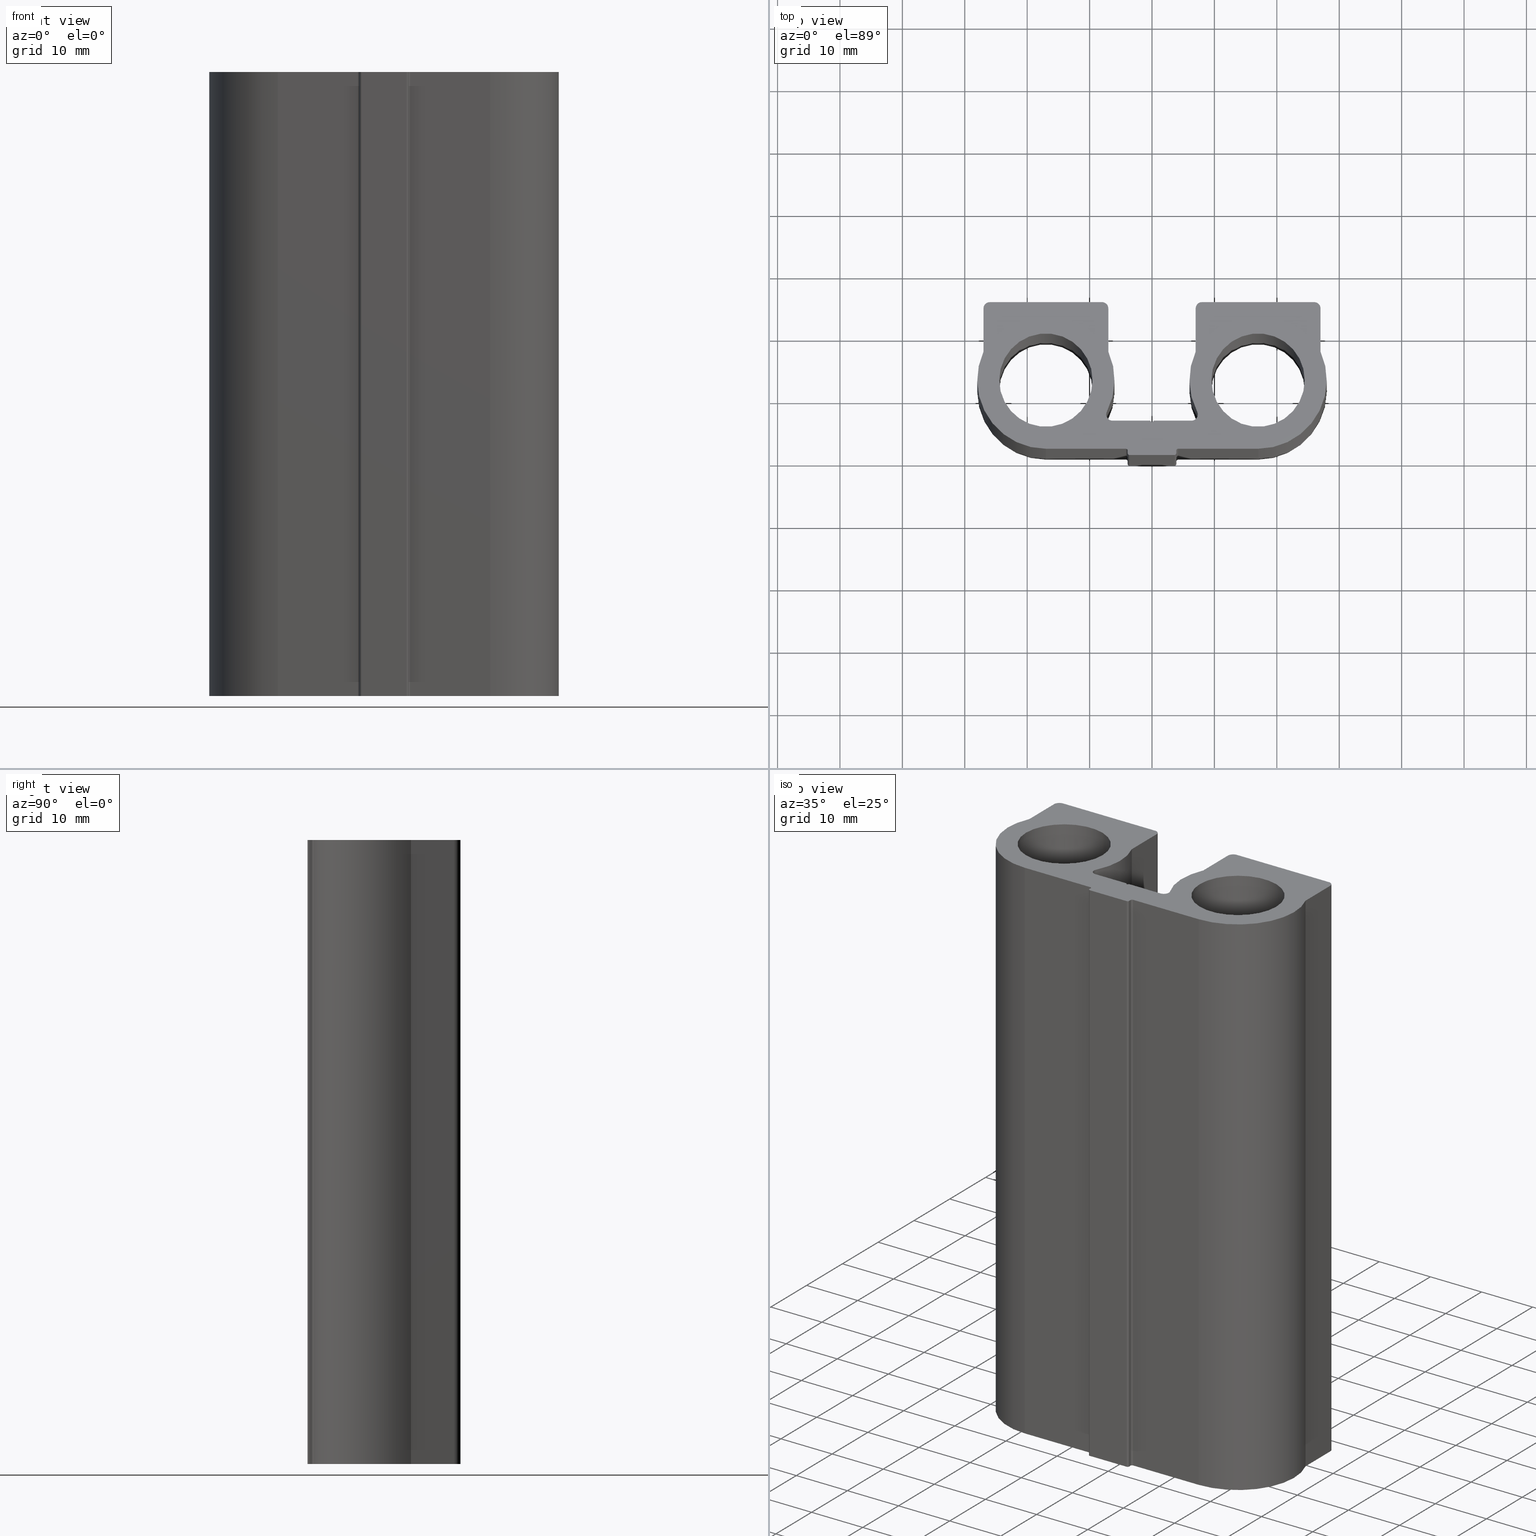
[diagram: canonical four-view strip — front | top / right | iso, engineering-drawing reading convention]
A machine part, canonical four-view strip (front | top / right | iso — engineering-drawing reading convention). The complete STEP part file that produces these views, byte-faithful:
ISO-10303-21;
HEADER;
/* Generated by software containing ST-Developer
 * from STEP Tools, Inc. (www.steptools.com) 
 */

FILE_DESCRIPTION(
/* description */ ('PROFILO X PROTEZIONI '),
/* implementation_level */ '2;1');

FILE_NAME(
/* name */ 
'Q:\\Catalogo\\1_Profili Dierre\\Per Download Web\\Complementari\\BPRD
D0000429.stp',
/* time_stamp */ '2017-07-14T12:29:38+02:00',
/* author */ ('fzagni'),
/* organization */ (''),
/* preprocessor_version */ 'ST-DEVELOPER v16.1',
/* originating_system */ 'Autodesk Inventor 2016',
/* authorisation */ '');

FILE_SCHEMA (('AUTOMOTIVE_DESIGN { 1 0 10303 214 3 1 1 }'));
ENDSEC;

DATA;
#10=MECHANICAL_DESIGN_GEOMETRIC_PRESENTATION_REPRESENTATION('',(#13),#1092);
#11=SHAPE_REPRESENTATION_RELATIONSHIP('SRR','None',#1101,#12);
#12=ADVANCED_BREP_SHAPE_REPRESENTATION('',(#14),#1091);
#13=STYLED_ITEM('',(#1110),#14);
#14=MANIFOLD_SOLID_BREP('Solido1',#644);
#15=LINE('',#916,#74);
#16=LINE('',#918,#75);
#17=LINE('',#920,#76);
#18=LINE('',#921,#77);
#19=LINE('',#924,#78);
#20=LINE('',#926,#79);
#21=LINE('',#927,#80);
#22=LINE('',#930,#81);
#23=LINE('',#932,#82);
#24=LINE('',#933,#83);
#25=LINE('',#939,#84);
#26=LINE('',#945,#85);
#27=LINE('',#948,#86);
#28=LINE('',#950,#87);
#29=LINE('',#951,#88);
#30=LINE('',#957,#89);
#31=LINE('',#960,#90);
#32=LINE('',#962,#91);
#33=LINE('',#963,#92);
#34=LINE('',#969,#93);
#35=LINE('',#972,#94);
#36=LINE('',#974,#95);
#37=LINE('',#975,#96);
#38=LINE('',#981,#97);
#39=LINE('',#984,#98);
#40=LINE('',#986,#99);
#41=LINE('',#987,#100);
#42=LINE('',#993,#101);
#43=LINE('',#996,#102);
#44=LINE('',#998,#103);
#45=LINE('',#999,#104);
#46=LINE('',#1005,#105);
#47=LINE('',#1008,#106);
#48=LINE('',#1010,#107);
#49=LINE('',#1011,#108);
#50=LINE('',#1017,#109);
#51=LINE('',#1020,#110);
#52=LINE('',#1022,#111);
#53=LINE('',#1023,#112);
#54=LINE('',#1029,#113);
#55=LINE('',#1032,#114);
#56=LINE('',#1034,#115);
#57=LINE('',#1035,#116);
#58=LINE('',#1041,#117);
#59=LINE('',#1044,#118);
#60=LINE('',#1046,#119);
#61=LINE('',#1047,#120);
#62=LINE('',#1053,#121);
#63=LINE('',#1056,#122);
#64=LINE('',#1058,#123);
#65=LINE('',#1059,#124);
#66=LINE('',#1065,#125);
#67=LINE('',#1068,#126);
#68=LINE('',#1070,#127);
#69=LINE('',#1071,#128);
#70=LINE('',#1077,#129);
#71=LINE('',#1083,#130);
#72=LINE('',#1085,#131);
#73=LINE('',#1086,#132);
#74=VECTOR('',#727,0.424262371469913);
#75=VECTOR('',#728,100.);
#76=VECTOR('',#729,0.424262371469913);
#77=VECTOR('',#730,100.);
#78=VECTOR('',#733,0.424264839462219);
#79=VECTOR('',#734,0.424264839462219);
#80=VECTOR('',#735,100.);
#81=VECTOR('',#738,6.03461659411528);
#82=VECTOR('',#739,6.03461659411528);
#83=VECTOR('',#740,100.);
#84=VECTOR('',#747,100.);
#85=VECTOR('',#754,100.);
#86=VECTOR('',#757,6.91739797517743);
#87=VECTOR('',#758,6.91739797517743);
#88=VECTOR('',#759,100.);
#89=VECTOR('',#766,100.);
#90=VECTOR('',#769,17.999964);
#91=VECTOR('',#770,17.999964);
#92=VECTOR('',#771,100.);
#93=VECTOR('',#778,100.);
#94=VECTOR('',#781,6.9173979751806);
#95=VECTOR('',#782,6.9173979751806);
#96=VECTOR('',#783,100.);
#97=VECTOR('',#790,100.);
#98=VECTOR('',#793,12.7999774499939);
#99=VECTOR('',#794,12.7999774499939);
#100=VECTOR('',#795,100.);
#101=VECTOR('',#802,100.);
#102=VECTOR('',#805,0.40000453877397);
#103=VECTOR('',#806,0.40000453877397);
#104=VECTOR('',#807,100.);
#105=VECTOR('',#814,100.);
#106=VECTOR('',#817,7.19998254000612);
#107=VECTOR('',#818,7.19998254000612);
#108=VECTOR('',#819,100.);
#109=VECTOR('',#826,100.);
#110=VECTOR('',#829,0.400000728781609);
#111=VECTOR('',#830,0.400000728781609);
#112=VECTOR('',#831,100.);
#113=VECTOR('',#838,100.);
#114=VECTOR('',#841,12.7999736400015);
#115=VECTOR('',#842,12.7999736400015);
#116=VECTOR('',#843,100.);
#117=VECTOR('',#850,100.);
#118=VECTOR('',#853,6.9173979751774);
#119=VECTOR('',#854,6.9173979751774);
#120=VECTOR('',#855,100.);
#121=VECTOR('',#862,100.);
#122=VECTOR('',#865,17.9999620859527);
#123=VECTOR('',#866,17.9999620859527);
#124=VECTOR('',#867,100.);
#125=VECTOR('',#874,100.);
#126=VECTOR('',#877,6.91740179502026);
#127=VECTOR('',#878,6.91740179502026);
#128=VECTOR('',#879,100.);
#129=VECTOR('',#886,100.);
#130=VECTOR('',#893,100.);
#131=VECTOR('',#896,6.0346253807251);
#132=VECTOR('',#897,6.0346253807251);
#133=PLANE('',#652);
#134=PLANE('',#653);
#135=PLANE('',#654);
#136=PLANE('',#661);
#137=PLANE('',#665);
#138=PLANE('',#669);
#139=PLANE('',#673);
#140=PLANE('',#677);
#141=PLANE('',#681);
#142=PLANE('',#685);
#143=PLANE('',#689);
#144=PLANE('',#693);
#145=PLANE('',#697);
#146=PLANE('',#701);
#147=PLANE('',#708);
#148=PLANE('',#709);
#149=PLANE('',#710);
#150=FACE_BOUND('',#190,.T.);
#151=FACE_BOUND('',#192,.T.);
#152=FACE_BOUND('',#223,.T.);
#153=FACE_BOUND('',#224,.T.);
#154=FACE_BOUND('',#226,.T.);
#155=FACE_BOUND('',#227,.T.);
#156=FACE_OUTER_BOUND('',#189,.T.);
#157=FACE_OUTER_BOUND('',#191,.T.);
#158=FACE_OUTER_BOUND('',#193,.T.);
#159=FACE_OUTER_BOUND('',#194,.T.);
#160=FACE_OUTER_BOUND('',#195,.T.);
#161=FACE_OUTER_BOUND('',#196,.T.);
#162=FACE_OUTER_BOUND('',#197,.T.);
#163=FACE_OUTER_BOUND('',#198,.T.);
#164=FACE_OUTER_BOUND('',#199,.T.);
#165=FACE_OUTER_BOUND('',#200,.T.);
#166=FACE_OUTER_BOUND('',#201,.T.);
#167=FACE_OUTER_BOUND('',#202,.T.);
#168=FACE_OUTER_BOUND('',#203,.T.);
#169=FACE_OUTER_BOUND('',#204,.T.);
#170=FACE_OUTER_BOUND('',#205,.T.);
#171=FACE_OUTER_BOUND('',#206,.T.);
#172=FACE_OUTER_BOUND('',#207,.T.);
#173=FACE_OUTER_BOUND('',#208,.T.);
#174=FACE_OUTER_BOUND('',#209,.T.);
#175=FACE_OUTER_BOUND('',#210,.T.);
#176=FACE_OUTER_BOUND('',#211,.T.);
#177=FACE_OUTER_BOUND('',#212,.T.);
#178=FACE_OUTER_BOUND('',#213,.T.);
#179=FACE_OUTER_BOUND('',#214,.T.);
#180=FACE_OUTER_BOUND('',#215,.T.);
#181=FACE_OUTER_BOUND('',#216,.T.);
#182=FACE_OUTER_BOUND('',#217,.T.);
#183=FACE_OUTER_BOUND('',#218,.T.);
#184=FACE_OUTER_BOUND('',#219,.T.);
#185=FACE_OUTER_BOUND('',#220,.T.);
#186=FACE_OUTER_BOUND('',#221,.T.);
#187=FACE_OUTER_BOUND('',#222,.T.);
#188=FACE_OUTER_BOUND('',#225,.T.);
#189=EDGE_LOOP('',(#413));
#190=EDGE_LOOP('',(#414));
#191=EDGE_LOOP('',(#415));
#192=EDGE_LOOP('',(#416));
#193=EDGE_LOOP('',(#417,#418,#419,#420));
#194=EDGE_LOOP('',(#421,#422,#423,#424));
#195=EDGE_LOOP('',(#425,#426,#427,#428));
#196=EDGE_LOOP('',(#429,#430,#431,#432));
#197=EDGE_LOOP('',(#433,#434,#435,#436));
#198=EDGE_LOOP('',(#437,#438,#439,#440));
#199=EDGE_LOOP('',(#441,#442,#443,#444));
#200=EDGE_LOOP('',(#445,#446,#447,#448));
#201=EDGE_LOOP('',(#449,#450,#451,#452));
#202=EDGE_LOOP('',(#453,#454,#455,#456));
#203=EDGE_LOOP('',(#457,#458,#459,#460));
#204=EDGE_LOOP('',(#461,#462,#463,#464));
#205=EDGE_LOOP('',(#465,#466,#467,#468));
#206=EDGE_LOOP('',(#469,#470,#471,#472));
#207=EDGE_LOOP('',(#473,#474,#475,#476));
#208=EDGE_LOOP('',(#477,#478,#479,#480));
#209=EDGE_LOOP('',(#481,#482,#483,#484));
#210=EDGE_LOOP('',(#485,#486,#487,#488));
#211=EDGE_LOOP('',(#489,#490,#491,#492));
#212=EDGE_LOOP('',(#493,#494,#495,#496));
#213=EDGE_LOOP('',(#497,#498,#499,#500));
#214=EDGE_LOOP('',(#501,#502,#503,#504));
#215=EDGE_LOOP('',(#505,#506,#507,#508));
#216=EDGE_LOOP('',(#509,#510,#511,#512));
#217=EDGE_LOOP('',(#513,#514,#515,#516));
#218=EDGE_LOOP('',(#517,#518,#519,#520));
#219=EDGE_LOOP('',(#521,#522,#523,#524));
#220=EDGE_LOOP('',(#525,#526,#527,#528));
#221=EDGE_LOOP('',(#529,#530,#531,#532));
#222=EDGE_LOOP('',(#533,#534,#535,#536,#537,#538,#539,#540,#541,#542,#543,
#544,#545,#546,#547,#548,#549,#550,#551,#552,#553,#554,#555,#556,#557,#558,
#559,#560,#561));
#223=EDGE_LOOP('',(#562));
#224=EDGE_LOOP('',(#563));
#225=EDGE_LOOP('',(#564,#565,#566,#567,#568,#569,#570,#571,#572,#573,#574,
#575,#576,#577,#578,#579,#580,#581,#582,#583,#584,#585,#586,#587,#588,#589,
#590,#591,#592));
#226=EDGE_LOOP('',(#593));
#227=EDGE_LOOP('',(#594));
#228=CIRCLE('',#647,7.47498733999543);
#229=CIRCLE('',#648,7.47498733999543);
#230=CIRCLE('',#650,7.47498733999542);
#231=CIRCLE('',#651,7.47498733999542);
#232=CIRCLE('',#656,0.999996077032479);
#233=CIRCLE('',#657,0.999996077032479);
#234=CIRCLE('',#659,10.9999803253407);
#235=CIRCLE('',#660,10.9999803253407);
#236=CIRCLE('',#663,0.99999609210157);
#237=CIRCLE('',#664,0.99999609210157);
#238=CIRCLE('',#667,0.999998004051739);
#239=CIRCLE('',#668,0.999998004051739);
#240=CIRCLE('',#671,10.9999774417901);
#241=CIRCLE('',#672,10.9999774417901);
#242=CIRCLE('',#675,0.300000541219139);
#243=CIRCLE('',#676,0.300000541219139);
#244=CIRCLE('',#679,0.29999864124116);
#245=CIRCLE('',#680,0.29999864124116);
#246=CIRCLE('',#683,0.300000546219096);
#247=CIRCLE('',#684,0.300000546219096);
#248=CIRCLE('',#687,0.300002451209252);
#249=CIRCLE('',#688,0.300002451209252);
#250=CIRCLE('',#691,10.9999748453875);
#251=CIRCLE('',#692,10.9999748453875);
#252=CIRCLE('',#695,0.999998004051122);
#253=CIRCLE('',#696,0.999998004051122);
#254=CIRCLE('',#699,0.999994180164492);
#255=CIRCLE('',#700,0.999994180164492);
#256=CIRCLE('',#703,10.9999754773308);
#257=CIRCLE('',#704,10.9999754773308);
#258=CIRCLE('',#706,0.999997775475729);
#259=CIRCLE('',#707,0.999997775475729);
#260=VERTEX_POINT('',#904);
#261=VERTEX_POINT('',#906);
#262=VERTEX_POINT('',#909);
#263=VERTEX_POINT('',#911);
#264=VERTEX_POINT('',#914);
#265=VERTEX_POINT('',#915);
#266=VERTEX_POINT('',#917);
#267=VERTEX_POINT('',#919);
#268=VERTEX_POINT('',#923);
#269=VERTEX_POINT('',#925);
#270=VERTEX_POINT('',#929);
#271=VERTEX_POINT('',#931);
#272=VERTEX_POINT('',#935);
#273=VERTEX_POINT('',#937);
#274=VERTEX_POINT('',#941);
#275=VERTEX_POINT('',#943);
#276=VERTEX_POINT('',#947);
#277=VERTEX_POINT('',#949);
#278=VERTEX_POINT('',#953);
#279=VERTEX_POINT('',#955);
#280=VERTEX_POINT('',#959);
#281=VERTEX_POINT('',#961);
#282=VERTEX_POINT('',#965);
#283=VERTEX_POINT('',#967);
#284=VERTEX_POINT('',#971);
#285=VERTEX_POINT('',#973);
#286=VERTEX_POINT('',#977);
#287=VERTEX_POINT('',#979);
#288=VERTEX_POINT('',#983);
#289=VERTEX_POINT('',#985);
#290=VERTEX_POINT('',#989);
#291=VERTEX_POINT('',#991);
#292=VERTEX_POINT('',#995);
#293=VERTEX_POINT('',#997);
#294=VERTEX_POINT('',#1001);
#295=VERTEX_POINT('',#1003);
#296=VERTEX_POINT('',#1007);
#297=VERTEX_POINT('',#1009);
#298=VERTEX_POINT('',#1013);
#299=VERTEX_POINT('',#1015);
#300=VERTEX_POINT('',#1019);
#301=VERTEX_POINT('',#1021);
#302=VERTEX_POINT('',#1025);
#303=VERTEX_POINT('',#1027);
#304=VERTEX_POINT('',#1031);
#305=VERTEX_POINT('',#1033);
#306=VERTEX_POINT('',#1037);
#307=VERTEX_POINT('',#1039);
#308=VERTEX_POINT('',#1043);
#309=VERTEX_POINT('',#1045);
#310=VERTEX_POINT('',#1049);
#311=VERTEX_POINT('',#1051);
#312=VERTEX_POINT('',#1055);
#313=VERTEX_POINT('',#1057);
#314=VERTEX_POINT('',#1061);
#315=VERTEX_POINT('',#1063);
#316=VERTEX_POINT('',#1067);
#317=VERTEX_POINT('',#1069);
#318=VERTEX_POINT('',#1073);
#319=VERTEX_POINT('',#1075);
#320=VERTEX_POINT('',#1079);
#321=VERTEX_POINT('',#1081);
#322=EDGE_CURVE('',#260,#260,#228,.T.);
#323=EDGE_CURVE('',#261,#261,#229,.T.);
#324=EDGE_CURVE('',#262,#262,#230,.T.);
#325=EDGE_CURVE('',#263,#263,#231,.T.);
#326=EDGE_CURVE('',#264,#265,#15,.T.);
#327=EDGE_CURVE('',#264,#266,#16,.T.);
#328=EDGE_CURVE('',#267,#266,#17,.T.);
#329=EDGE_CURVE('',#265,#267,#18,.T.);
#330=EDGE_CURVE('',#265,#268,#19,.T.);
#331=EDGE_CURVE('',#269,#267,#20,.T.);
#332=EDGE_CURVE('',#268,#269,#21,.T.);
#333=EDGE_CURVE('',#268,#270,#22,.T.);
#334=EDGE_CURVE('',#271,#269,#23,.T.);
#335=EDGE_CURVE('',#270,#271,#24,.T.);
#336=EDGE_CURVE('',#270,#272,#232,.T.);
#337=EDGE_CURVE('',#273,#271,#233,.T.);
#338=EDGE_CURVE('',#272,#273,#25,.T.);
#339=EDGE_CURVE('',#272,#274,#234,.T.);
#340=EDGE_CURVE('',#275,#273,#235,.T.);
#341=EDGE_CURVE('',#274,#275,#26,.T.);
#342=EDGE_CURVE('',#274,#276,#27,.T.);
#343=EDGE_CURVE('',#277,#275,#28,.T.);
#344=EDGE_CURVE('',#276,#277,#29,.T.);
#345=EDGE_CURVE('',#276,#278,#236,.T.);
#346=EDGE_CURVE('',#279,#277,#237,.T.);
#347=EDGE_CURVE('',#278,#279,#30,.T.);
#348=EDGE_CURVE('',#278,#280,#31,.T.);
#349=EDGE_CURVE('',#281,#279,#32,.T.);
#350=EDGE_CURVE('',#280,#281,#33,.T.);
#351=EDGE_CURVE('',#280,#282,#238,.T.);
#352=EDGE_CURVE('',#283,#281,#239,.T.);
#353=EDGE_CURVE('',#282,#283,#34,.T.);
#354=EDGE_CURVE('',#282,#284,#35,.T.);
#355=EDGE_CURVE('',#285,#283,#36,.T.);
#356=EDGE_CURVE('',#284,#285,#37,.T.);
#357=EDGE_CURVE('',#284,#286,#240,.T.);
#358=EDGE_CURVE('',#287,#285,#241,.T.);
#359=EDGE_CURVE('',#286,#287,#38,.T.);
#360=EDGE_CURVE('',#286,#288,#39,.T.);
#361=EDGE_CURVE('',#289,#287,#40,.T.);
#362=EDGE_CURVE('',#288,#289,#41,.T.);
#363=EDGE_CURVE('',#288,#290,#242,.T.);
#364=EDGE_CURVE('',#291,#289,#243,.T.);
#365=EDGE_CURVE('',#290,#291,#42,.T.);
#366=EDGE_CURVE('',#290,#292,#43,.T.);
#367=EDGE_CURVE('',#293,#291,#44,.T.);
#368=EDGE_CURVE('',#292,#293,#45,.T.);
#369=EDGE_CURVE('',#292,#294,#244,.T.);
#370=EDGE_CURVE('',#295,#293,#245,.T.);
#371=EDGE_CURVE('',#294,#295,#46,.T.);
#372=EDGE_CURVE('',#294,#296,#47,.T.);
#373=EDGE_CURVE('',#297,#295,#48,.T.);
#374=EDGE_CURVE('',#296,#297,#49,.T.);
#375=EDGE_CURVE('',#296,#298,#246,.T.);
#376=EDGE_CURVE('',#299,#297,#247,.T.);
#377=EDGE_CURVE('',#298,#299,#50,.T.);
#378=EDGE_CURVE('',#298,#300,#51,.T.);
#379=EDGE_CURVE('',#301,#299,#52,.T.);
#380=EDGE_CURVE('',#300,#301,#53,.T.);
#381=EDGE_CURVE('',#300,#302,#248,.T.);
#382=EDGE_CURVE('',#303,#301,#249,.T.);
#383=EDGE_CURVE('',#302,#303,#54,.T.);
#384=EDGE_CURVE('',#302,#304,#55,.T.);
#385=EDGE_CURVE('',#305,#303,#56,.T.);
#386=EDGE_CURVE('',#304,#305,#57,.T.);
#387=EDGE_CURVE('',#304,#306,#250,.T.);
#388=EDGE_CURVE('',#307,#305,#251,.T.);
#389=EDGE_CURVE('',#306,#307,#58,.T.);
#390=EDGE_CURVE('',#306,#308,#59,.T.);
#391=EDGE_CURVE('',#309,#307,#60,.T.);
#392=EDGE_CURVE('',#308,#309,#61,.T.);
#393=EDGE_CURVE('',#308,#310,#252,.T.);
#394=EDGE_CURVE('',#311,#309,#253,.T.);
#395=EDGE_CURVE('',#310,#311,#62,.T.);
#396=EDGE_CURVE('',#310,#312,#63,.T.);
#397=EDGE_CURVE('',#313,#311,#64,.T.);
#398=EDGE_CURVE('',#312,#313,#65,.T.);
#399=EDGE_CURVE('',#312,#314,#254,.T.);
#400=EDGE_CURVE('',#315,#313,#255,.T.);
#401=EDGE_CURVE('',#314,#315,#66,.T.);
#402=EDGE_CURVE('',#314,#316,#67,.T.);
#403=EDGE_CURVE('',#317,#315,#68,.T.);
#404=EDGE_CURVE('',#316,#317,#69,.T.);
#405=EDGE_CURVE('',#316,#318,#256,.T.);
#406=EDGE_CURVE('',#319,#317,#257,.T.);
#407=EDGE_CURVE('',#318,#319,#70,.T.);
#408=EDGE_CURVE('',#318,#320,#258,.T.);
#409=EDGE_CURVE('',#321,#319,#259,.T.);
#410=EDGE_CURVE('',#320,#321,#71,.T.);
#411=EDGE_CURVE('',#320,#264,#72,.T.);
#412=EDGE_CURVE('',#266,#321,#73,.T.);
#413=ORIENTED_EDGE('',*,*,#322,.F.);
#414=ORIENTED_EDGE('',*,*,#323,.F.);
#415=ORIENTED_EDGE('',*,*,#324,.F.);
#416=ORIENTED_EDGE('',*,*,#325,.F.);
#417=ORIENTED_EDGE('',*,*,#326,.F.);
#418=ORIENTED_EDGE('',*,*,#327,.T.);
#419=ORIENTED_EDGE('',*,*,#328,.F.);
#420=ORIENTED_EDGE('',*,*,#329,.F.);
#421=ORIENTED_EDGE('',*,*,#330,.F.);
#422=ORIENTED_EDGE('',*,*,#329,.T.);
#423=ORIENTED_EDGE('',*,*,#331,.F.);
#424=ORIENTED_EDGE('',*,*,#332,.F.);
#425=ORIENTED_EDGE('',*,*,#333,.F.);
#426=ORIENTED_EDGE('',*,*,#332,.T.);
#427=ORIENTED_EDGE('',*,*,#334,.F.);
#428=ORIENTED_EDGE('',*,*,#335,.F.);
#429=ORIENTED_EDGE('',*,*,#336,.F.);
#430=ORIENTED_EDGE('',*,*,#335,.T.);
#431=ORIENTED_EDGE('',*,*,#337,.F.);
#432=ORIENTED_EDGE('',*,*,#338,.F.);
#433=ORIENTED_EDGE('',*,*,#339,.F.);
#434=ORIENTED_EDGE('',*,*,#338,.T.);
#435=ORIENTED_EDGE('',*,*,#340,.F.);
#436=ORIENTED_EDGE('',*,*,#341,.F.);
#437=ORIENTED_EDGE('',*,*,#342,.F.);
#438=ORIENTED_EDGE('',*,*,#341,.T.);
#439=ORIENTED_EDGE('',*,*,#343,.F.);
#440=ORIENTED_EDGE('',*,*,#344,.F.);
#441=ORIENTED_EDGE('',*,*,#345,.F.);
#442=ORIENTED_EDGE('',*,*,#344,.T.);
#443=ORIENTED_EDGE('',*,*,#346,.F.);
#444=ORIENTED_EDGE('',*,*,#347,.F.);
#445=ORIENTED_EDGE('',*,*,#348,.F.);
#446=ORIENTED_EDGE('',*,*,#347,.T.);
#447=ORIENTED_EDGE('',*,*,#349,.F.);
#448=ORIENTED_EDGE('',*,*,#350,.F.);
#449=ORIENTED_EDGE('',*,*,#351,.F.);
#450=ORIENTED_EDGE('',*,*,#350,.T.);
#451=ORIENTED_EDGE('',*,*,#352,.F.);
#452=ORIENTED_EDGE('',*,*,#353,.F.);
#453=ORIENTED_EDGE('',*,*,#354,.F.);
#454=ORIENTED_EDGE('',*,*,#353,.T.);
#455=ORIENTED_EDGE('',*,*,#355,.F.);
#456=ORIENTED_EDGE('',*,*,#356,.F.);
#457=ORIENTED_EDGE('',*,*,#357,.F.);
#458=ORIENTED_EDGE('',*,*,#356,.T.);
#459=ORIENTED_EDGE('',*,*,#358,.F.);
#460=ORIENTED_EDGE('',*,*,#359,.F.);
#461=ORIENTED_EDGE('',*,*,#360,.F.);
#462=ORIENTED_EDGE('',*,*,#359,.T.);
#463=ORIENTED_EDGE('',*,*,#361,.F.);
#464=ORIENTED_EDGE('',*,*,#362,.F.);
#465=ORIENTED_EDGE('',*,*,#363,.F.);
#466=ORIENTED_EDGE('',*,*,#362,.T.);
#467=ORIENTED_EDGE('',*,*,#364,.F.);
#468=ORIENTED_EDGE('',*,*,#365,.F.);
#469=ORIENTED_EDGE('',*,*,#366,.F.);
#470=ORIENTED_EDGE('',*,*,#365,.T.);
#471=ORIENTED_EDGE('',*,*,#367,.F.);
#472=ORIENTED_EDGE('',*,*,#368,.F.);
#473=ORIENTED_EDGE('',*,*,#369,.F.);
#474=ORIENTED_EDGE('',*,*,#368,.T.);
#475=ORIENTED_EDGE('',*,*,#370,.F.);
#476=ORIENTED_EDGE('',*,*,#371,.F.);
#477=ORIENTED_EDGE('',*,*,#372,.F.);
#478=ORIENTED_EDGE('',*,*,#371,.T.);
#479=ORIENTED_EDGE('',*,*,#373,.F.);
#480=ORIENTED_EDGE('',*,*,#374,.F.);
#481=ORIENTED_EDGE('',*,*,#375,.F.);
#482=ORIENTED_EDGE('',*,*,#374,.T.);
#483=ORIENTED_EDGE('',*,*,#376,.F.);
#484=ORIENTED_EDGE('',*,*,#377,.F.);
#485=ORIENTED_EDGE('',*,*,#378,.F.);
#486=ORIENTED_EDGE('',*,*,#377,.T.);
#487=ORIENTED_EDGE('',*,*,#379,.F.);
#488=ORIENTED_EDGE('',*,*,#380,.F.);
#489=ORIENTED_EDGE('',*,*,#381,.F.);
#490=ORIENTED_EDGE('',*,*,#380,.T.);
#491=ORIENTED_EDGE('',*,*,#382,.F.);
#492=ORIENTED_EDGE('',*,*,#383,.F.);
#493=ORIENTED_EDGE('',*,*,#384,.F.);
#494=ORIENTED_EDGE('',*,*,#383,.T.);
#495=ORIENTED_EDGE('',*,*,#385,.F.);
#496=ORIENTED_EDGE('',*,*,#386,.F.);
#497=ORIENTED_EDGE('',*,*,#387,.F.);
#498=ORIENTED_EDGE('',*,*,#386,.T.);
#499=ORIENTED_EDGE('',*,*,#388,.F.);
#500=ORIENTED_EDGE('',*,*,#389,.F.);
#501=ORIENTED_EDGE('',*,*,#390,.F.);
#502=ORIENTED_EDGE('',*,*,#389,.T.);
#503=ORIENTED_EDGE('',*,*,#391,.F.);
#504=ORIENTED_EDGE('',*,*,#392,.F.);
#505=ORIENTED_EDGE('',*,*,#393,.F.);
#506=ORIENTED_EDGE('',*,*,#392,.T.);
#507=ORIENTED_EDGE('',*,*,#394,.F.);
#508=ORIENTED_EDGE('',*,*,#395,.F.);
#509=ORIENTED_EDGE('',*,*,#396,.F.);
#510=ORIENTED_EDGE('',*,*,#395,.T.);
#511=ORIENTED_EDGE('',*,*,#397,.F.);
#512=ORIENTED_EDGE('',*,*,#398,.F.);
#513=ORIENTED_EDGE('',*,*,#399,.F.);
#514=ORIENTED_EDGE('',*,*,#398,.T.);
#515=ORIENTED_EDGE('',*,*,#400,.F.);
#516=ORIENTED_EDGE('',*,*,#401,.F.);
#517=ORIENTED_EDGE('',*,*,#402,.F.);
#518=ORIENTED_EDGE('',*,*,#401,.T.);
#519=ORIENTED_EDGE('',*,*,#403,.F.);
#520=ORIENTED_EDGE('',*,*,#404,.F.);
#521=ORIENTED_EDGE('',*,*,#405,.F.);
#522=ORIENTED_EDGE('',*,*,#404,.T.);
#523=ORIENTED_EDGE('',*,*,#406,.F.);
#524=ORIENTED_EDGE('',*,*,#407,.F.);
#525=ORIENTED_EDGE('',*,*,#408,.F.);
#526=ORIENTED_EDGE('',*,*,#407,.T.);
#527=ORIENTED_EDGE('',*,*,#409,.F.);
#528=ORIENTED_EDGE('',*,*,#410,.F.);
#529=ORIENTED_EDGE('',*,*,#411,.F.);
#530=ORIENTED_EDGE('',*,*,#410,.T.);
#531=ORIENTED_EDGE('',*,*,#412,.F.);
#532=ORIENTED_EDGE('',*,*,#327,.F.);
#533=ORIENTED_EDGE('',*,*,#411,.T.);
#534=ORIENTED_EDGE('',*,*,#326,.T.);
#535=ORIENTED_EDGE('',*,*,#330,.T.);
#536=ORIENTED_EDGE('',*,*,#333,.T.);
#537=ORIENTED_EDGE('',*,*,#336,.T.);
#538=ORIENTED_EDGE('',*,*,#339,.T.);
#539=ORIENTED_EDGE('',*,*,#342,.T.);
#540=ORIENTED_EDGE('',*,*,#345,.T.);
#541=ORIENTED_EDGE('',*,*,#348,.T.);
#542=ORIENTED_EDGE('',*,*,#351,.T.);
#543=ORIENTED_EDGE('',*,*,#354,.T.);
#544=ORIENTED_EDGE('',*,*,#357,.T.);
#545=ORIENTED_EDGE('',*,*,#360,.T.);
#546=ORIENTED_EDGE('',*,*,#363,.T.);
#547=ORIENTED_EDGE('',*,*,#366,.T.);
#548=ORIENTED_EDGE('',*,*,#369,.T.);
#549=ORIENTED_EDGE('',*,*,#372,.T.);
#550=ORIENTED_EDGE('',*,*,#375,.T.);
#551=ORIENTED_EDGE('',*,*,#378,.T.);
#552=ORIENTED_EDGE('',*,*,#381,.T.);
#553=ORIENTED_EDGE('',*,*,#384,.T.);
#554=ORIENTED_EDGE('',*,*,#387,.T.);
#555=ORIENTED_EDGE('',*,*,#390,.T.);
#556=ORIENTED_EDGE('',*,*,#393,.T.);
#557=ORIENTED_EDGE('',*,*,#396,.T.);
#558=ORIENTED_EDGE('',*,*,#399,.T.);
#559=ORIENTED_EDGE('',*,*,#402,.T.);
#560=ORIENTED_EDGE('',*,*,#405,.T.);
#561=ORIENTED_EDGE('',*,*,#408,.T.);
#562=ORIENTED_EDGE('',*,*,#323,.T.);
#563=ORIENTED_EDGE('',*,*,#325,.T.);
#564=ORIENTED_EDGE('',*,*,#412,.T.);
#565=ORIENTED_EDGE('',*,*,#409,.T.);
#566=ORIENTED_EDGE('',*,*,#406,.T.);
#567=ORIENTED_EDGE('',*,*,#403,.T.);
#568=ORIENTED_EDGE('',*,*,#400,.T.);
#569=ORIENTED_EDGE('',*,*,#397,.T.);
#570=ORIENTED_EDGE('',*,*,#394,.T.);
#571=ORIENTED_EDGE('',*,*,#391,.T.);
#572=ORIENTED_EDGE('',*,*,#388,.T.);
#573=ORIENTED_EDGE('',*,*,#385,.T.);
#574=ORIENTED_EDGE('',*,*,#382,.T.);
#575=ORIENTED_EDGE('',*,*,#379,.T.);
#576=ORIENTED_EDGE('',*,*,#376,.T.);
#577=ORIENTED_EDGE('',*,*,#373,.T.);
#578=ORIENTED_EDGE('',*,*,#370,.T.);
#579=ORIENTED_EDGE('',*,*,#367,.T.);
#580=ORIENTED_EDGE('',*,*,#364,.T.);
#581=ORIENTED_EDGE('',*,*,#361,.T.);
#582=ORIENTED_EDGE('',*,*,#358,.T.);
#583=ORIENTED_EDGE('',*,*,#355,.T.);
#584=ORIENTED_EDGE('',*,*,#352,.T.);
#585=ORIENTED_EDGE('',*,*,#349,.T.);
#586=ORIENTED_EDGE('',*,*,#346,.T.);
#587=ORIENTED_EDGE('',*,*,#343,.T.);
#588=ORIENTED_EDGE('',*,*,#340,.T.);
#589=ORIENTED_EDGE('',*,*,#337,.T.);
#590=ORIENTED_EDGE('',*,*,#334,.T.);
#591=ORIENTED_EDGE('',*,*,#331,.T.);
#592=ORIENTED_EDGE('',*,*,#328,.T.);
#593=ORIENTED_EDGE('',*,*,#322,.T.);
#594=ORIENTED_EDGE('',*,*,#324,.T.);
#595=CYLINDRICAL_SURFACE('',#646,7.47498733999543);
#596=CYLINDRICAL_SURFACE('',#649,7.47498733999542);
#597=CYLINDRICAL_SURFACE('',#655,0.999996077032479);
#598=CYLINDRICAL_SURFACE('',#658,10.9999803253407);
#599=CYLINDRICAL_SURFACE('',#662,0.99999609210157);
#600=CYLINDRICAL_SURFACE('',#666,0.999998004051739);
#601=CYLINDRICAL_SURFACE('',#670,10.9999774417901);
#602=CYLINDRICAL_SURFACE('',#674,0.300000541219139);
#603=CYLINDRICAL_SURFACE('',#678,0.29999864124116);
#604=CYLINDRICAL_SURFACE('',#682,0.300000546219096);
#605=CYLINDRICAL_SURFACE('',#686,0.300002451209252);
#606=CYLINDRICAL_SURFACE('',#690,10.9999748453875);
#607=CYLINDRICAL_SURFACE('',#694,0.999998004051122);
#608=CYLINDRICAL_SURFACE('',#698,0.999994180164492);
#609=CYLINDRICAL_SURFACE('',#702,10.9999754773308);
#610=CYLINDRICAL_SURFACE('',#705,0.999997775475729);
#611=ADVANCED_FACE('',(#156,#150),#595,.F.);
#612=ADVANCED_FACE('',(#157,#151),#596,.F.);
#613=ADVANCED_FACE('',(#158),#133,.T.);
#614=ADVANCED_FACE('',(#159),#134,.T.);
#615=ADVANCED_FACE('',(#160),#135,.T.);
#616=ADVANCED_FACE('',(#161),#597,.F.);
#617=ADVANCED_FACE('',(#162),#598,.T.);
#618=ADVANCED_FACE('',(#163),#136,.T.);
#619=ADVANCED_FACE('',(#164),#599,.T.);
#620=ADVANCED_FACE('',(#165),#137,.T.);
#621=ADVANCED_FACE('',(#166),#600,.T.);
#622=ADVANCED_FACE('',(#167),#138,.T.);
#623=ADVANCED_FACE('',(#168),#601,.T.);
#624=ADVANCED_FACE('',(#169),#139,.T.);
#625=ADVANCED_FACE('',(#170),#602,.F.);
#626=ADVANCED_FACE('',(#171),#140,.T.);
#627=ADVANCED_FACE('',(#172),#603,.T.);
#628=ADVANCED_FACE('',(#173),#141,.T.);
#629=ADVANCED_FACE('',(#174),#604,.T.);
#630=ADVANCED_FACE('',(#175),#142,.T.);
#631=ADVANCED_FACE('',(#176),#605,.F.);
#632=ADVANCED_FACE('',(#177),#143,.T.);
#633=ADVANCED_FACE('',(#178),#606,.T.);
#634=ADVANCED_FACE('',(#179),#144,.T.);
#635=ADVANCED_FACE('',(#180),#607,.T.);
#636=ADVANCED_FACE('',(#181),#145,.T.);
#637=ADVANCED_FACE('',(#182),#608,.T.);
#638=ADVANCED_FACE('',(#183),#146,.T.);
#639=ADVANCED_FACE('',(#184),#609,.T.);
#640=ADVANCED_FACE('',(#185),#610,.F.);
#641=ADVANCED_FACE('',(#186),#147,.T.);
#642=ADVANCED_FACE('',(#187,#152,#153),#148,.F.);
#643=ADVANCED_FACE('',(#188,#154,#155),#149,.T.);
#644=CLOSED_SHELL('',(#611,#612,#613,#614,#615,#616,#617,#618,#619,#620,
#621,#622,#623,#624,#625,#626,#627,#628,#629,#630,#631,#632,#633,#634,#635,
#636,#637,#638,#639,#640,#641,#642,#643));
#645=AXIS2_PLACEMENT_3D('placement',#902,#711,#712);
#646=AXIS2_PLACEMENT_3D('',#903,#713,#714);
#647=AXIS2_PLACEMENT_3D('',#905,#715,#716);
#648=AXIS2_PLACEMENT_3D('',#907,#717,#718);
#649=AXIS2_PLACEMENT_3D('',#908,#719,#720);
#650=AXIS2_PLACEMENT_3D('',#910,#721,#722);
#651=AXIS2_PLACEMENT_3D('',#912,#723,#724);
#652=AXIS2_PLACEMENT_3D('',#913,#725,#726);
#653=AXIS2_PLACEMENT_3D('',#922,#731,#732);
#654=AXIS2_PLACEMENT_3D('',#928,#736,#737);
#655=AXIS2_PLACEMENT_3D('',#934,#741,#742);
#656=AXIS2_PLACEMENT_3D('',#936,#743,#744);
#657=AXIS2_PLACEMENT_3D('',#938,#745,#746);
#658=AXIS2_PLACEMENT_3D('',#940,#748,#749);
#659=AXIS2_PLACEMENT_3D('',#942,#750,#751);
#660=AXIS2_PLACEMENT_3D('',#944,#752,#753);
#661=AXIS2_PLACEMENT_3D('',#946,#755,#756);
#662=AXIS2_PLACEMENT_3D('',#952,#760,#761);
#663=AXIS2_PLACEMENT_3D('',#954,#762,#763);
#664=AXIS2_PLACEMENT_3D('',#956,#764,#765);
#665=AXIS2_PLACEMENT_3D('',#958,#767,#768);
#666=AXIS2_PLACEMENT_3D('',#964,#772,#773);
#667=AXIS2_PLACEMENT_3D('',#966,#774,#775);
#668=AXIS2_PLACEMENT_3D('',#968,#776,#777);
#669=AXIS2_PLACEMENT_3D('',#970,#779,#780);
#670=AXIS2_PLACEMENT_3D('',#976,#784,#785);
#671=AXIS2_PLACEMENT_3D('',#978,#786,#787);
#672=AXIS2_PLACEMENT_3D('',#980,#788,#789);
#673=AXIS2_PLACEMENT_3D('',#982,#791,#792);
#674=AXIS2_PLACEMENT_3D('',#988,#796,#797);
#675=AXIS2_PLACEMENT_3D('',#990,#798,#799);
#676=AXIS2_PLACEMENT_3D('',#992,#800,#801);
#677=AXIS2_PLACEMENT_3D('',#994,#803,#804);
#678=AXIS2_PLACEMENT_3D('',#1000,#808,#809);
#679=AXIS2_PLACEMENT_3D('',#1002,#810,#811);
#680=AXIS2_PLACEMENT_3D('',#1004,#812,#813);
#681=AXIS2_PLACEMENT_3D('',#1006,#815,#816);
#682=AXIS2_PLACEMENT_3D('',#1012,#820,#821);
#683=AXIS2_PLACEMENT_3D('',#1014,#822,#823);
#684=AXIS2_PLACEMENT_3D('',#1016,#824,#825);
#685=AXIS2_PLACEMENT_3D('',#1018,#827,#828);
#686=AXIS2_PLACEMENT_3D('',#1024,#832,#833);
#687=AXIS2_PLACEMENT_3D('',#1026,#834,#835);
#688=AXIS2_PLACEMENT_3D('',#1028,#836,#837);
#689=AXIS2_PLACEMENT_3D('',#1030,#839,#840);
#690=AXIS2_PLACEMENT_3D('',#1036,#844,#845);
#691=AXIS2_PLACEMENT_3D('',#1038,#846,#847);
#692=AXIS2_PLACEMENT_3D('',#1040,#848,#849);
#693=AXIS2_PLACEMENT_3D('',#1042,#851,#852);
#694=AXIS2_PLACEMENT_3D('',#1048,#856,#857);
#695=AXIS2_PLACEMENT_3D('',#1050,#858,#859);
#696=AXIS2_PLACEMENT_3D('',#1052,#860,#861);
#697=AXIS2_PLACEMENT_3D('',#1054,#863,#864);
#698=AXIS2_PLACEMENT_3D('',#1060,#868,#869);
#699=AXIS2_PLACEMENT_3D('',#1062,#870,#871);
#700=AXIS2_PLACEMENT_3D('',#1064,#872,#873);
#701=AXIS2_PLACEMENT_3D('',#1066,#875,#876);
#702=AXIS2_PLACEMENT_3D('',#1072,#880,#881);
#703=AXIS2_PLACEMENT_3D('',#1074,#882,#883);
#704=AXIS2_PLACEMENT_3D('',#1076,#884,#885);
#705=AXIS2_PLACEMENT_3D('',#1078,#887,#888);
#706=AXIS2_PLACEMENT_3D('',#1080,#889,#890);
#707=AXIS2_PLACEMENT_3D('',#1082,#891,#892);
#708=AXIS2_PLACEMENT_3D('',#1084,#894,#895);
#709=AXIS2_PLACEMENT_3D('',#1087,#898,#899);
#710=AXIS2_PLACEMENT_3D('',#1088,#900,#901);
#711=DIRECTION('axis',(0.,0.,1.));
#712=DIRECTION('refdir',(1.,0.,0.));
#713=DIRECTION('center_axis',(0.,0.,1.));
#714=DIRECTION('ref_axis',(-1.,0.,0.));
#715=DIRECTION('center_axis',(0.,0.,-1.));
#716=DIRECTION('ref_axis',(-1.,0.,0.));
#717=DIRECTION('center_axis',(0.,0.,1.));
#718=DIRECTION('ref_axis',(-1.,0.,0.));
#719=DIRECTION('center_axis',(0.,0.,1.));
#720=DIRECTION('ref_axis',(-1.,0.,0.));
#721=DIRECTION('center_axis',(0.,0.,-1.));
#722=DIRECTION('ref_axis',(-1.,0.,0.));
#723=DIRECTION('center_axis',(0.,0.,1.));
#724=DIRECTION('ref_axis',(-1.,0.,0.));
#725=DIRECTION('center_axis',(0.707106781186485,0.70710678118661,0.));
#726=DIRECTION('ref_axis',(-0.70710678118661,0.707106781186485,0.));
#727=DIRECTION('',(0.70710678118661,-0.707106781186485,0.));
#728=DIRECTION('',(0.,0.,1.));
#729=DIRECTION('',(-0.70710678118661,0.707106781186485,0.));
#730=DIRECTION('',(0.,0.,1.));
#731=DIRECTION('center_axis',(-0.707102667873447,0.70711089447572,0.));
#732=DIRECTION('ref_axis',(-0.70711089447572,-0.707102667873447,0.));
#733=DIRECTION('',(0.70711089447572,0.707102667873447,0.));
#734=DIRECTION('',(-0.70711089447572,-0.707102667873447,0.));
#735=DIRECTION('',(0.,0.,1.));
#736=DIRECTION('center_axis',(0.,1.,0.));
#737=DIRECTION('ref_axis',(-1.,0.,0.));
#738=DIRECTION('',(1.,0.,0.));
#739=DIRECTION('',(-1.,0.,0.));
#740=DIRECTION('',(0.,0.,1.));
#741=DIRECTION('center_axis',(0.,0.,1.));
#742=DIRECTION('ref_axis',(1.15662962756893E-6,-0.999999999999331,0.));
#743=DIRECTION('center_axis',(0.,0.,1.));
#744=DIRECTION('ref_axis',(1.15662962756893E-6,-0.999999999999331,0.));
#745=DIRECTION('center_axis',(0.,0.,-1.));
#746=DIRECTION('ref_axis',(1.15662962756893E-6,-0.999999999999331,0.));
#747=DIRECTION('',(0.,0.,1.));
#748=DIRECTION('center_axis',(0.,0.,1.));
#749=DIRECTION('ref_axis',(0.909090716168773,-0.416598211440888,0.));
#750=DIRECTION('center_axis',(0.,0.,-1.));
#751=DIRECTION('ref_axis',(0.909090716168773,-0.416598211440888,0.));
#752=DIRECTION('center_axis',(0.,0.,1.));
#753=DIRECTION('ref_axis',(0.909090716168773,-0.416598211440888,0.));
#754=DIRECTION('',(0.,0.,1.));
#755=DIRECTION('center_axis',(-0.999999999999848,-5.52229663769142E-7,0.));
#756=DIRECTION('ref_axis',(5.52229663774995E-7,-0.999999999999848,0.));
#757=DIRECTION('',(-5.52229663769142E-7,0.999999999999847,0.));
#758=DIRECTION('',(5.52229663769142E-7,-0.999999999999847,0.));
#759=DIRECTION('',(0.,0.,1.));
#760=DIRECTION('center_axis',(0.,0.,1.));
#761=DIRECTION('ref_axis',(-1.90790771146953E-6,-0.99999999999818,0.));
#762=DIRECTION('center_axis',(0.,0.,-1.));
#763=DIRECTION('ref_axis',(-1.90790771146953E-6,-0.99999999999818,0.));
#764=DIRECTION('center_axis',(0.,0.,1.));
#765=DIRECTION('ref_axis',(-1.90790771146953E-6,-0.99999999999818,0.));
#766=DIRECTION('',(0.,0.,1.));
#767=DIRECTION('center_axis',(0.,1.,0.));
#768=DIRECTION('ref_axis',(-1.,0.,0.));
#769=DIRECTION('',(1.,0.,0.));
#770=DIRECTION('',(-1.,0.,0.));
#771=DIRECTION('',(0.,0.,1.));
#772=DIRECTION('center_axis',(0.,0.,1.));
#773=DIRECTION('ref_axis',(-1.,-4.0510875576396E-9,0.));
#774=DIRECTION('center_axis',(0.,0.,-1.));
#775=DIRECTION('ref_axis',(-1.,-4.0510875576396E-9,0.));
#776=DIRECTION('center_axis',(0.,0.,1.));
#777=DIRECTION('ref_axis',(-1.,-4.0510875576396E-9,0.));
#778=DIRECTION('',(0.,0.,1.));
#779=DIRECTION('center_axis',(0.999999999999392,1.10301360211974E-6,0.));
#780=DIRECTION('ref_axis',(-1.10301360223275E-6,0.999999999999392,0.));
#781=DIRECTION('',(1.10301360211974E-6,-0.999999999999392,0.));
#782=DIRECTION('',(-1.10301360211974E-6,0.999999999999392,0.));
#783=DIRECTION('',(0.,0.,1.));
#784=DIRECTION('center_axis',(0.,0.,1.));
#785=DIRECTION('ref_axis',(-3.61113710382315E-8,0.999999999999999,0.));
#786=DIRECTION('center_axis',(0.,0.,-1.));
#787=DIRECTION('ref_axis',(-3.61113710382315E-8,0.999999999999999,0.));
#788=DIRECTION('center_axis',(0.,0.,1.));
#789=DIRECTION('ref_axis',(-3.61113710382315E-8,0.999999999999999,0.));
#790=DIRECTION('',(0.,0.,1.));
#791=DIRECTION('center_axis',(-2.42861714490906E-15,-1.,0.));
#792=DIRECTION('ref_axis',(1.,-2.42028619368284E-15,0.));
#793=DIRECTION('',(-1.,2.42861714490906E-15,0.));
#794=DIRECTION('',(1.,-2.42861714490906E-15,0.));
#795=DIRECTION('',(0.,0.,1.));
#796=DIRECTION('center_axis',(0.,0.,1.));
#797=DIRECTION('ref_axis',(-6.37077474600812E-6,0.999999999979707,0.));
#798=DIRECTION('center_axis',(0.,0.,1.));
#799=DIRECTION('ref_axis',(-6.37077474600812E-6,0.999999999979707,0.));
#800=DIRECTION('center_axis',(0.,0.,-1.));
#801=DIRECTION('ref_axis',(-6.37077474600812E-6,0.999999999979707,0.));
#802=DIRECTION('',(0.,0.,1.));
#803=DIRECTION('center_axis',(1.,8.32657820354764E-15,0.));
#804=DIRECTION('ref_axis',(-8.30446822419617E-15,1.,0.));
#805=DIRECTION('',(8.32657820354764E-15,-1.,0.));
#806=DIRECTION('',(-8.32657820354764E-15,1.,0.));
#807=DIRECTION('',(0.,0.,1.));
#808=DIRECTION('center_axis',(0.,0.,1.));
#809=DIRECTION('ref_axis',(1.27293145188023E-5,0.999999999918982,0.));
#810=DIRECTION('center_axis',(0.,0.,-1.));
#811=DIRECTION('ref_axis',(1.27293145188023E-5,0.999999999918982,0.));
#812=DIRECTION('center_axis',(0.,0.,1.));
#813=DIRECTION('ref_axis',(1.27293145188023E-5,0.999999999918982,0.));
#814=DIRECTION('',(0.,0.,1.));
#815=DIRECTION('center_axis',(5.8595246170861E-15,-1.,0.));
#816=DIRECTION('ref_axis',(1.,5.8595246170861E-15,0.));
#817=DIRECTION('',(-1.,-5.8595246170861E-15,0.));
#818=DIRECTION('',(1.,5.8595246170861E-15,0.));
#819=DIRECTION('',(0.,0.,1.));
#820=DIRECTION('center_axis',(0.,0.,1.));
#821=DIRECTION('ref_axis',(0.999999999979865,-6.34592462232643E-6,0.));
#822=DIRECTION('center_axis',(0.,0.,-1.));
#823=DIRECTION('ref_axis',(0.999999999979865,-6.34592462232643E-6,0.));
#824=DIRECTION('center_axis',(0.,0.,1.));
#825=DIRECTION('ref_axis',(0.999999999979865,-6.34592462232643E-6,0.));
#826=DIRECTION('',(0.,0.,1.));
#827=DIRECTION('center_axis',(-1.,-3.33066300556061E-14,0.));
#828=DIRECTION('ref_axis',(3.33066907387547E-14,-1.,0.));
#829=DIRECTION('',(-3.33066300556061E-14,1.,0.));
#830=DIRECTION('',(3.33066300556061E-14,-1.,0.));
#831=DIRECTION('',(0.,0.,1.));
#832=DIRECTION('center_axis',(0.,0.,1.));
#833=DIRECTION('ref_axis',(1.,0.,0.));
#834=DIRECTION('center_axis',(0.,0.,1.));
#835=DIRECTION('ref_axis',(1.,0.,0.));
#836=DIRECTION('center_axis',(0.,0.,-1.));
#837=DIRECTION('ref_axis',(1.,0.,0.));
#838=DIRECTION('',(0.,0.,1.));
#839=DIRECTION('center_axis',(-4.51029032591831E-15,-1.,0.));
#840=DIRECTION('ref_axis',(1.,-4.50750547997814E-15,0.));
#841=DIRECTION('',(-1.,4.51029032591831E-15,0.));
#842=DIRECTION('',(1.,-4.51029032591831E-15,0.));
#843=DIRECTION('',(0.,0.,1.));
#844=DIRECTION('center_axis',(0.,0.,1.));
#845=DIRECTION('ref_axis',(0.909090838108012,-0.416597945347878,0.));
#846=DIRECTION('center_axis',(0.,0.,-1.));
#847=DIRECTION('ref_axis',(0.909090838108012,-0.416597945347878,0.));
#848=DIRECTION('center_axis',(0.,0.,1.));
#849=DIRECTION('ref_axis',(0.909090838108012,-0.416597945347878,0.));
#850=DIRECTION('',(0.,0.,1.));
#851=DIRECTION('center_axis',(-0.999999999999848,-5.50784035933401E-7,0.));
#852=DIRECTION('ref_axis',(5.50784035979746E-7,-0.999999999999848,0.));
#853=DIRECTION('',(-5.50784035933401E-7,0.999999999999848,0.));
#854=DIRECTION('',(5.50784035933401E-7,-0.999999999999848,0.));
#855=DIRECTION('',(0.,0.,1.));
#856=DIRECTION('center_axis',(0.,0.,1.));
#857=DIRECTION('ref_axis',(8.88180192462382E-15,-1.,0.));
#858=DIRECTION('center_axis',(0.,0.,-1.));
#859=DIRECTION('ref_axis',(8.88180192462382E-15,-1.,0.));
#860=DIRECTION('center_axis',(0.,0.,1.));
#861=DIRECTION('ref_axis',(8.88180192462382E-15,-1.,0.));
#862=DIRECTION('',(0.,0.,1.));
#863=DIRECTION('center_axis',(1.72701723153985E-15,1.,0.));
#864=DIRECTION('ref_axis',(-1.,1.77635683940025E-15,0.));
#865=DIRECTION('',(1.,-1.72701723153985E-15,0.));
#866=DIRECTION('',(-1.,1.72701723153985E-15,0.));
#867=DIRECTION('',(0.,0.,1.));
#868=DIRECTION('center_axis',(0.,0.,1.));
#869=DIRECTION('ref_axis',(-1.,-1.77636717756503E-14,0.));
#870=DIRECTION('center_axis',(0.,0.,-1.));
#871=DIRECTION('ref_axis',(-1.,-1.77636717756503E-14,0.));
#872=DIRECTION('center_axis',(0.,0.,1.));
#873=DIRECTION('ref_axis',(-1.,-1.77636717756503E-14,0.));
#874=DIRECTION('',(0.,0.,1.));
#875=DIRECTION('center_axis',(0.999999999999848,5.50782674431202E-7,0.));
#876=DIRECTION('ref_axis',(-5.50782674402228E-7,0.999999999999848,0.));
#877=DIRECTION('',(5.50782674431202E-7,-0.999999999999848,0.));
#878=DIRECTION('',(-5.50782674431202E-7,0.999999999999848,0.));
#879=DIRECTION('',(0.,0.,1.));
#880=DIRECTION('center_axis',(0.,0.,1.));
#881=DIRECTION('ref_axis',(-0.888779929677719,0.458334197504473,0.));
#882=DIRECTION('center_axis',(0.,0.,-1.));
#883=DIRECTION('ref_axis',(-0.888779929677719,0.458334197504473,0.));
#884=DIRECTION('center_axis',(0.,0.,1.));
#885=DIRECTION('ref_axis',(-0.888779929677719,0.458334197504473,0.));
#886=DIRECTION('',(0.,0.,1.));
#887=DIRECTION('center_axis',(0.,0.,1.));
#888=DIRECTION('ref_axis',(-0.888782833023241,0.458328567430814,0.));
#889=DIRECTION('center_axis',(0.,0.,1.));
#890=DIRECTION('ref_axis',(-0.888782833023241,0.458328567430814,0.));
#891=DIRECTION('center_axis',(0.,0.,-1.));
#892=DIRECTION('ref_axis',(-0.888782833023241,0.458328567430814,0.));
#893=DIRECTION('',(0.,0.,1.));
#894=DIRECTION('center_axis',(0.,1.,0.));
#895=DIRECTION('ref_axis',(-1.,0.,0.));
#896=DIRECTION('',(1.,0.,0.));
#897=DIRECTION('',(-1.,0.,0.));
#898=DIRECTION('center_axis',(0.,0.,1.));
#899=DIRECTION('ref_axis',(1.,0.,0.));
#900=DIRECTION('center_axis',(0.,0.,1.));
#901=DIRECTION('ref_axis',(1.,0.,0.));
#902=CARTESIAN_POINT('',(0.,0.,0.));
#903=CARTESIAN_POINT('Origin',(16.9999719599881,11.9999892699735,0.));
#904=CARTESIAN_POINT('',(24.4749592999835,11.9999892699735,100.));
#905=CARTESIAN_POINT('Origin',(16.9999719599881,11.9999892699735,100.));
#906=CARTESIAN_POINT('',(24.4749592999835,11.9999892699735,0.));
#907=CARTESIAN_POINT('Origin',(16.9999719599881,11.9999892699735,0.));
#908=CARTESIAN_POINT('Origin',(-16.9999638500043,11.9999892699735,0.));
#909=CARTESIAN_POINT('',(-9.52497651000888,11.9999892699735,100.));
#910=CARTESIAN_POINT('Origin',(-16.9999638500043,11.9999892699735,100.));
#911=CARTESIAN_POINT('',(-9.52497651000888,11.9999892699735,0.));
#912=CARTESIAN_POINT('Origin',(-16.9999638500043,11.9999892699735,0.));
#913=CARTESIAN_POINT('Origin',(1.59867169502448E-7,5.19999783011609,0.));
#914=CARTESIAN_POINT('',(-0.299998640001519,5.49999662998472,0.));
#915=CARTESIAN_POINT('',(1.59867169502448E-7,5.19999783011609,0.));
#916=CARTESIAN_POINT('',(-0.299998640001519,5.49999662998472,0.));
#917=CARTESIAN_POINT('',(-0.299998640001519,5.49999662998472,100.));
#918=CARTESIAN_POINT('',(-0.299998640001519,5.49999662998472,0.));
#919=CARTESIAN_POINT('',(1.59867169502448E-7,5.19999783011609,100.));
#920=CARTESIAN_POINT('',(-0.299998640001519,5.49999662998472,100.));
#921=CARTESIAN_POINT('',(1.59867169502448E-7,5.19999783011609,0.));
#922=CARTESIAN_POINT('Origin',(0.300002449993897,5.49999662998472,0.));
#923=CARTESIAN_POINT('',(0.300002449993897,5.49999662998472,0.));
#924=CARTESIAN_POINT('',(1.59867169502448E-7,5.19999783011609,0.));
#925=CARTESIAN_POINT('',(0.300002449993897,5.49999662998472,100.));
#926=CARTESIAN_POINT('',(1.59867169502448E-7,5.19999783011609,100.));
#927=CARTESIAN_POINT('',(0.300002449993897,5.49999662998472,0.));
#928=CARTESIAN_POINT('Origin',(6.33461904410918,5.49999662998472,0.));
#929=CARTESIAN_POINT('',(6.33461904410918,5.49999662998472,0.));
#930=CARTESIAN_POINT('',(0.300002449993897,5.49999662998472,0.));
#931=CARTESIAN_POINT('',(6.33461904410918,5.49999662998472,100.));
#932=CARTESIAN_POINT('',(0.300002449993897,5.49999662998472,100.));
#933=CARTESIAN_POINT('',(6.33461904410918,5.49999662998472,0.));
#934=CARTESIAN_POINT('Origin',(6.33461788748409,6.49999270701653,0.));
#935=CARTESIAN_POINT('',(7.22339595655176,6.95832195332827,0.));
#936=CARTESIAN_POINT('Origin',(6.33461788748409,6.49999270701653,0.));
#937=CARTESIAN_POINT('',(7.22339595655176,6.95832195332827,100.));
#938=CARTESIAN_POINT('Origin',(6.33461788748409,6.49999270701653,100.));
#939=CARTESIAN_POINT('',(7.22339595655176,6.95832195332827,0.));
#940=CARTESIAN_POINT('Origin',(16.9999648351813,11.9999752654169,0.));
#941=CARTESIAN_POINT('',(6.99998484337492,16.5825473948388,0.));
#942=CARTESIAN_POINT('Origin',(16.9999648351813,11.9999752654169,0.));
#943=CARTESIAN_POINT('',(6.99998484337492,16.5825473948388,100.));
#944=CARTESIAN_POINT('Origin',(16.9999648351813,11.9999752654169,100.));
#945=CARTESIAN_POINT('',(6.99998484337492,16.5825473948388,0.));
#946=CARTESIAN_POINT('Origin',(6.99998102338256,23.4999453700152,0.));
#947=CARTESIAN_POINT('',(6.99998102338256,23.4999453700152,0.));
#948=CARTESIAN_POINT('',(6.99998484337492,16.5825473948388,0.));
#949=CARTESIAN_POINT('',(6.99998102338256,23.4999453700152,100.));
#950=CARTESIAN_POINT('',(6.99998484337492,16.5825473948388,100.));
#951=CARTESIAN_POINT('',(6.99998102338256,23.4999453700152,0.));
#952=CARTESIAN_POINT('Origin',(7.99997711548231,23.4999472779155,0.));
#953=CARTESIAN_POINT('',(7.99997902338256,24.4999433700152,0.));
#954=CARTESIAN_POINT('Origin',(7.99997711548231,23.4999472779155,0.));
#955=CARTESIAN_POINT('',(7.99997902338256,24.4999433700152,100.));
#956=CARTESIAN_POINT('Origin',(7.99997711548231,23.4999472779155,100.));
#957=CARTESIAN_POINT('',(7.99997902338256,24.4999433700152,0.));
#958=CARTESIAN_POINT('Origin',(25.9999430233826,24.4999433700152,0.));
#959=CARTESIAN_POINT('',(25.9999430233826,24.4999433700152,0.));
#960=CARTESIAN_POINT('',(7.99997902338256,24.4999433700152,0.));
#961=CARTESIAN_POINT('',(25.9999430233826,24.4999433700152,100.));
#962=CARTESIAN_POINT('',(7.99997902338256,24.4999433700152,100.));
#963=CARTESIAN_POINT('',(25.9999430233826,24.4999433700152,0.));
#964=CARTESIAN_POINT('Origin',(25.9999441759566,23.4999453659642,0.));
#965=CARTESIAN_POINT('',(26.9999421800083,23.4999453700153,0.));
#966=CARTESIAN_POINT('Origin',(25.9999441759566,23.4999453659642,0.));
#967=CARTESIAN_POINT('',(26.9999421800083,23.4999453700153,100.));
#968=CARTESIAN_POINT('Origin',(25.9999441759566,23.4999453659642,100.));
#969=CARTESIAN_POINT('',(26.9999421800083,23.4999453700153,0.));
#970=CARTESIAN_POINT('Origin',(26.9999498099924,16.5825473948389,0.));
#971=CARTESIAN_POINT('',(26.9999498099924,16.5825473948389,0.));
#972=CARTESIAN_POINT('',(26.9999421800083,23.4999453700153,0.));
#973=CARTESIAN_POINT('',(26.9999498099924,16.5825473948389,100.));
#974=CARTESIAN_POINT('',(26.9999421800083,23.4999453700153,100.));
#975=CARTESIAN_POINT('',(26.9999498099924,16.5825473948389,0.));
#976=CARTESIAN_POINT('Origin',(16.9999694127681,11.9999830717748,0.));
#977=CARTESIAN_POINT('',(16.9999698099923,1.00000562998475,0.));
#978=CARTESIAN_POINT('Origin',(16.9999694127681,11.9999830717748,0.));
#979=CARTESIAN_POINT('',(16.9999698099923,1.00000562998475,100.));
#980=CARTESIAN_POINT('Origin',(16.9999694127681,11.9999830717748,100.));
#981=CARTESIAN_POINT('',(16.9999698099923,1.00000562998475,0.));
#982=CARTESIAN_POINT('Origin',(4.19999235999847,1.00000562998479,0.));
#983=CARTESIAN_POINT('',(4.19999235999847,1.00000562998479,0.));
#984=CARTESIAN_POINT('',(16.9999698099923,1.00000562998475,0.));
#985=CARTESIAN_POINT('',(4.19999235999847,1.00000562998479,100.));
#986=CARTESIAN_POINT('',(16.9999698099923,1.00000562998475,100.));
#987=CARTESIAN_POINT('',(4.19999235999847,1.00000562998479,0.));
#988=CARTESIAN_POINT('Origin',(4.19999427123435,0.700005088771736,0.));
#989=CARTESIAN_POINT('',(3.89999373002128,0.700003179990842,0.));
#990=CARTESIAN_POINT('Origin',(4.19999427123435,0.700005088771736,0.));
#991=CARTESIAN_POINT('',(3.89999373002128,0.700003179990842,100.));
#992=CARTESIAN_POINT('Origin',(4.19999427123435,0.700005088771736,100.));
#993=CARTESIAN_POINT('',(3.89999373002128,0.700003179990842,0.));
#994=CARTESIAN_POINT('Origin',(3.89999373002128,0.299998641216872,0.));
#995=CARTESIAN_POINT('',(3.89999373002128,0.299998641216872,0.));
#996=CARTESIAN_POINT('',(3.89999373002128,0.700003179990842,0.));
#997=CARTESIAN_POINT('',(3.89999373002128,0.299998641216872,100.));
#998=CARTESIAN_POINT('',(3.89999373002128,0.700003179990842,100.));
#999=CARTESIAN_POINT('',(3.89999373002128,0.299998641216872,0.));
#1000=CARTESIAN_POINT('Origin',(3.59999508878012,0.299998641216872,0.));
#1001=CARTESIAN_POINT('',(3.59999127000306,1.33226762955019E-14,0.));
#1002=CARTESIAN_POINT('Origin',(3.59999508878012,0.299998641216872,0.));
#1003=CARTESIAN_POINT('',(3.59999127000306,1.33226762955019E-14,100.));
#1004=CARTESIAN_POINT('Origin',(3.59999508878012,0.299998641216872,100.));
#1005=CARTESIAN_POINT('',(3.59999127000306,1.33226762955019E-14,0.));
#1006=CARTESIAN_POINT('Origin',(-3.59999127000306,-2.88657986402541E-14,
0.));
#1007=CARTESIAN_POINT('',(-3.59999127000306,-2.88657986402541E-14,0.));
#1008=CARTESIAN_POINT('',(3.59999127000306,1.33226762955019E-14,0.));
#1009=CARTESIAN_POINT('',(-3.59999127000306,-2.88657986402541E-14,100.));
#1010=CARTESIAN_POINT('',(3.59999127000306,1.33226762955019E-14,100.));
#1011=CARTESIAN_POINT('',(-3.59999127000306,-2.88657986402541E-14,0.));
#1012=CARTESIAN_POINT('Origin',(-3.59998936379152,0.300000546213015,0.));
#1013=CARTESIAN_POINT('',(-3.89998991000458,0.300002449993868,0.));
#1014=CARTESIAN_POINT('Origin',(-3.59998936379152,0.300000546213015,0.));
#1015=CARTESIAN_POINT('',(-3.89998991000458,0.300002449993868,100.));
#1016=CARTESIAN_POINT('Origin',(-3.59998936379152,0.300000546213015,100.));
#1017=CARTESIAN_POINT('',(-3.89998991000458,0.300002449993868,0.));
#1018=CARTESIAN_POINT('Origin',(-3.89998991000459,0.700003178775477,0.));
#1019=CARTESIAN_POINT('',(-3.89998991000459,0.700003178775477,0.));
#1020=CARTESIAN_POINT('',(-3.89998991000458,0.300002449993868,0.));
#1021=CARTESIAN_POINT('',(-3.89998991000459,0.700003178775477,100.));
#1022=CARTESIAN_POINT('',(-3.89998991000458,0.300002449993868,100.));
#1023=CARTESIAN_POINT('',(-3.89998991000459,0.700003178775477,0.));
#1024=CARTESIAN_POINT('Origin',(-4.19999236121384,0.700003178775477,0.));
#1025=CARTESIAN_POINT('',(-4.19999235999847,1.00000562998473,0.));
#1026=CARTESIAN_POINT('Origin',(-4.19999236121384,0.700003178775477,0.));
#1027=CARTESIAN_POINT('',(-4.19999235999847,1.00000562998473,100.));
#1028=CARTESIAN_POINT('Origin',(-4.19999236121384,0.700003178775477,100.));
#1029=CARTESIAN_POINT('',(-4.19999235999847,1.00000562998473,0.));
#1030=CARTESIAN_POINT('Origin',(-16.999966,1.00000562998479,0.));
#1031=CARTESIAN_POINT('',(-16.999966,1.00000562998479,0.));
#1032=CARTESIAN_POINT('',(-4.19999235999847,1.00000562998473,0.));
#1033=CARTESIAN_POINT('',(-16.999966,1.00000562998479,100.));
#1034=CARTESIAN_POINT('',(-4.19999235999847,1.00000562998473,100.));
#1035=CARTESIAN_POINT('',(-16.999966,1.00000562998479,0.));
#1036=CARTESIAN_POINT('Origin',(-16.999963928651,11.9999804753721,0.));
#1037=CARTESIAN_POINT('',(-26.9999402800114,16.5825473948389,0.));
#1038=CARTESIAN_POINT('Origin',(-16.999963928651,11.9999804753721,0.));
#1039=CARTESIAN_POINT('',(-26.9999402800114,16.5825473948389,100.));
#1040=CARTESIAN_POINT('Origin',(-16.999963928651,11.9999804753721,100.));
#1041=CARTESIAN_POINT('',(-26.9999402800114,16.5825473948389,0.));
#1042=CARTESIAN_POINT('Origin',(-26.9999440900038,23.4999453700153,0.));
#1043=CARTESIAN_POINT('',(-26.9999440900038,23.4999453700153,0.));
#1044=CARTESIAN_POINT('',(-26.9999402800114,16.5825473948389,0.));
#1045=CARTESIAN_POINT('',(-26.9999440900038,23.4999453700153,100.));
#1046=CARTESIAN_POINT('',(-26.9999402800114,16.5825473948389,100.));
#1047=CARTESIAN_POINT('',(-26.9999440900038,23.4999453700153,0.));
#1048=CARTESIAN_POINT('Origin',(-25.9999460859527,23.4999453659642,0.));
#1049=CARTESIAN_POINT('',(-25.9999460859527,24.4999433700153,0.));
#1050=CARTESIAN_POINT('Origin',(-25.9999460859527,23.4999453659642,0.));
#1051=CARTESIAN_POINT('',(-25.9999460859527,24.4999433700153,100.));
#1052=CARTESIAN_POINT('Origin',(-25.9999460859527,23.4999453659642,100.));
#1053=CARTESIAN_POINT('',(-25.9999460859527,24.4999433700153,0.));
#1054=CARTESIAN_POINT('Origin',(-7.99998399999999,24.4999433700153,0.));
#1055=CARTESIAN_POINT('',(-7.99998399999999,24.4999433700153,0.));
#1056=CARTESIAN_POINT('',(-25.9999460859527,24.4999433700153,0.));
#1057=CARTESIAN_POINT('',(-7.99998399999999,24.4999433700153,100.));
#1058=CARTESIAN_POINT('',(-25.9999460859527,24.4999433700153,100.));
#1059=CARTESIAN_POINT('',(-7.99998399999999,24.4999433700153,0.));
#1060=CARTESIAN_POINT('Origin',(-7.99998018015718,23.4999491898581,0.));
#1061=CARTESIAN_POINT('',(-6.99998599999269,23.4999491898581,0.));
#1062=CARTESIAN_POINT('Origin',(-7.99998018015718,23.4999491898581,0.));
#1063=CARTESIAN_POINT('',(-6.99998599999269,23.4999491898581,100.));
#1064=CARTESIAN_POINT('Origin',(-7.99998018015718,23.4999491898581,100.));
#1065=CARTESIAN_POINT('',(-6.99998599999269,23.4999491898581,0.));
#1066=CARTESIAN_POINT('Origin',(-6.99998219000763,16.5825473948389,0.));
#1067=CARTESIAN_POINT('',(-6.99998219000763,16.5825473948389,0.));
#1068=CARTESIAN_POINT('',(-6.99998599999269,23.4999491898581,0.));
#1069=CARTESIAN_POINT('',(-6.99998219000763,16.5825473948389,100.));
#1070=CARTESIAN_POINT('',(-6.99998599999269,23.4999491898581,100.));
#1071=CARTESIAN_POINT('',(-6.99998219000763,16.5825473948389,0.));
#1072=CARTESIAN_POINT('Origin',(-16.9999621743603,11.9999868862995,0.));
#1073=CARTESIAN_POINT('',(-7.22340474316163,6.95832195332823,0.));
#1074=CARTESIAN_POINT('Origin',(-16.9999621743603,11.9999868862995,0.));
#1075=CARTESIAN_POINT('',(-7.22340474316163,6.95832195332823,100.));
#1076=CARTESIAN_POINT('Origin',(-16.9999621743603,11.9999868862995,100.));
#1077=CARTESIAN_POINT('',(-7.22340474316163,6.95832195332823,0.));
#1078=CARTESIAN_POINT('Origin',(-6.33462388725737,6.49999440546044,0.));
#1079=CARTESIAN_POINT('',(-6.33462402072662,5.49999662998472,0.));
#1080=CARTESIAN_POINT('Origin',(-6.33462388725737,6.49999440546044,0.));
#1081=CARTESIAN_POINT('',(-6.33462402072662,5.49999662998472,100.));
#1082=CARTESIAN_POINT('Origin',(-6.33462388725737,6.49999440546044,100.));
#1083=CARTESIAN_POINT('',(-6.33462402072662,5.49999662998472,0.));
#1084=CARTESIAN_POINT('Origin',(-0.299998640001519,5.49999662998472,0.));
#1085=CARTESIAN_POINT('',(-6.33462402072662,5.49999662998472,0.));
#1086=CARTESIAN_POINT('',(-6.33462402072662,5.49999662998472,100.));
#1087=CARTESIAN_POINT('Origin',(8.42770151425181E-7,12.3898146328957,0.));
#1088=CARTESIAN_POINT('Origin',(8.42770151425181E-7,12.3898146328957,100.));
#1089=UNCERTAINTY_MEASURE_WITH_UNIT(LENGTH_MEASURE(0.01),#1093,
'DISTANCE_ACCURACY_VALUE',
'Maximum model space distance between geometric entities at asserted c
onnectivities');
#1090=UNCERTAINTY_MEASURE_WITH_UNIT(LENGTH_MEASURE(1.E-6),#1093,
'DISTANCE_ACCURACY_VALUE',
'Maximum model space distance between geometric entities at asserted c
onnectivities');
#1091=(
GEOMETRIC_REPRESENTATION_CONTEXT(3)
GLOBAL_UNCERTAINTY_ASSIGNED_CONTEXT((#1089))
GLOBAL_UNIT_ASSIGNED_CONTEXT((#1093,#1096,#1094))
REPRESENTATION_CONTEXT('','3D')
);
#1092=(
GEOMETRIC_REPRESENTATION_CONTEXT(3)
GLOBAL_UNCERTAINTY_ASSIGNED_CONTEXT((#1090))
GLOBAL_UNIT_ASSIGNED_CONTEXT((#1093,#1096,#1094))
REPRESENTATION_CONTEXT('','3D')
);
#1093=(
LENGTH_UNIT()
NAMED_UNIT(*)
SI_UNIT(.MILLI.,.METRE.)
);
#1094=(
NAMED_UNIT(*)
SI_UNIT($,.STERADIAN.)
SOLID_ANGLE_UNIT()
);
#1095=DIMENSIONAL_EXPONENTS(0.,0.,0.,0.,0.,0.,0.);
#1096=(
CONVERSION_BASED_UNIT('degree',#1098)
NAMED_UNIT(#1095)
PLANE_ANGLE_UNIT()
);
#1097=(
NAMED_UNIT(*)
PLANE_ANGLE_UNIT()
SI_UNIT($,.RADIAN.)
);
#1098=PLANE_ANGLE_MEASURE_WITH_UNIT(PLANE_ANGLE_MEASURE(0.01745329252),
#1097);
#1099=SHAPE_DEFINITION_REPRESENTATION(#1100,#1101);
#1100=PRODUCT_DEFINITION_SHAPE('',$,#1103);
#1101=SHAPE_REPRESENTATION('',(#645),#1091);
#1102=PRODUCT_DEFINITION_CONTEXT('part definition',#1107,'design');
#1103=PRODUCT_DEFINITION('DAAPR0001226','DAAPR0001226',#1104,#1102);
#1104=PRODUCT_DEFINITION_FORMATION('','A',#1109);
#1105=PRODUCT_RELATED_PRODUCT_CATEGORY('DAAPR0001226','DAAPR0001226',(#1109));
#1106=APPLICATION_PROTOCOL_DEFINITION('international standard',
'automotive_design',2009,#1107);
#1107=APPLICATION_CONTEXT(
'Core Data for Automotive Mechanical Design Process');
#1108=PRODUCT_CONTEXT('part definition',#1107,'mechanical');
#1109=PRODUCT('DAAPR0001226','DAAPR0001226',$,(#1108));
#1110=PRESENTATION_STYLE_ASSIGNMENT((#1111));
#1111=SURFACE_STYLE_USAGE(.BOTH.,#1112);
#1112=SURFACE_SIDE_STYLE('',(#1113));
#1113=SURFACE_STYLE_FILL_AREA(#1114);
#1114=FILL_AREA_STYLE('',(#1115));
#1115=FILL_AREA_STYLE_COLOUR('',#1116);
#1116=COLOUR_RGB('',0.749019607843137,0.749019607843137,0.749019607843137);
ENDSEC;
END-ISO-10303-21;
